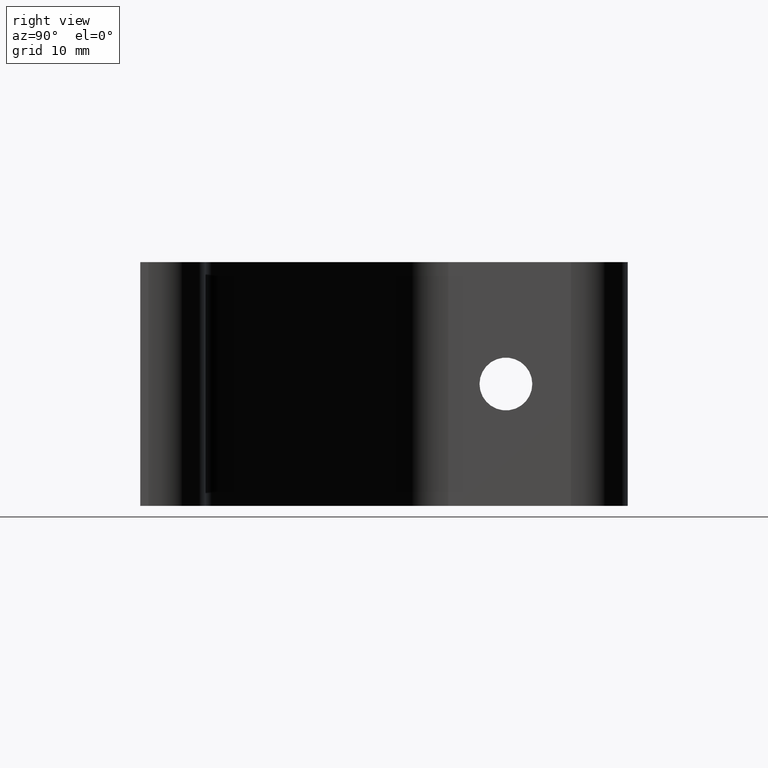
[diagram: clean part render]
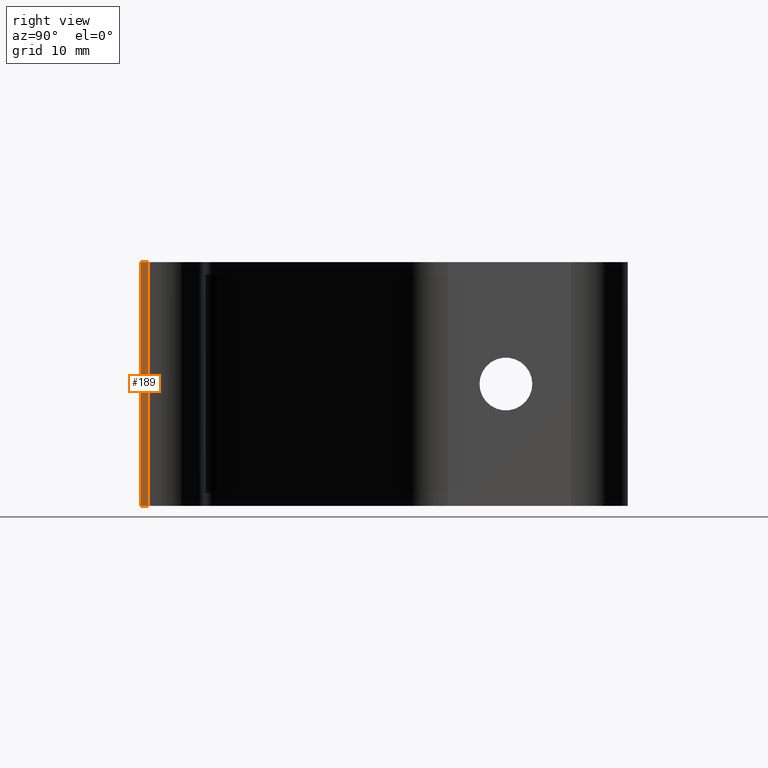
[diagram: same view with one face highlighted and labeled with its STEP entity id]
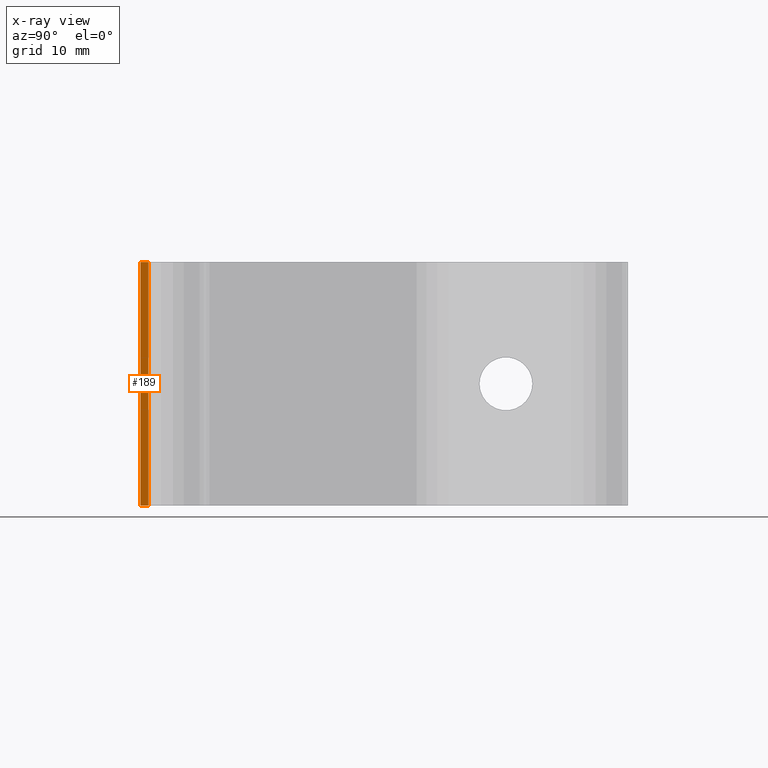
[diagram: x-ray of the same camera — body ghosted, the highlighted face saturated]
A machine part, right view. The second image highlights one B-rep face of the part: STEP entity #189.
The next image is the same camera in x-ray: the body ghosted, the highlighted face saturated — about 0% of this face is hidden behind the body in this view.
In plain terms, the highlighted planar face has unit normal (-1, 0, 0).
Its self-contained STEP definition (entity closure, byte-faithful):
#4 = DIRECTION ( 'NONE',  ( 0.0000000000000000000, 1.000000000000000000, 0.0000000000000000000 ) ) ;
#5 = CARTESIAN_POINT ( 'NONE',  ( 0.0000000000000000000, 30.00000000000000000, 0.0000000000000000000 ) ) ;
#6 = DIRECTION ( 'NONE',  ( -0.0000000000000000000, -0.0000000000000000000, -1.000000000000000000 ) ) ;
#7 = CARTESIAN_POINT ( 'NONE',  ( 0.0000000000000000000, 0.0000000000000000000, 15.00000000000000000 ) ) ;
#8 = DIRECTION ( 'NONE',  ( 0.0000000000000000000, 1.000000000000000000, 0.0000000000000000000 ) ) ;
#15 = ORIENTED_EDGE ( 'NONE', *, *, #383, .T. ) ;
#16 = ORIENTED_EDGE ( 'NONE', *, *, #382, .F. ) ;
#17 = ORIENTED_EDGE ( 'NONE', *, *, #381, .T. ) ;
#161 = CARTESIAN_POINT ( 'NONE',  ( 0.0000000000000000000, 0.9999999985642721300, 1.734723475976807100E-015 ) ) ;
#165 = CARTESIAN_POINT ( 'NONE',  ( 0.0000000000000000000, 0.9999999985642759000, 30.00000000000000000 ) ) ;
#166 = CARTESIAN_POINT ( 'NONE',  ( 0.0000000000000000000, 0.0000000000000000000, 30.00000000000000000 ) ) ;
#169 = CARTESIAN_POINT ( 'NONE',  ( 0.0000000000000000000, 0.0000000000000000000, 0.0000000000000000000 ) ) ;
#189 = ADVANCED_FACE ( 'NONE', ( #621 ), #536, .F. ) ;
#357 = CARTESIAN_POINT ( 'NONE',  ( 0.0000000000000000000, 30.00000000000000000, 30.00000000000000000 ) ) ;
#358 = DIRECTION ( 'NONE',  ( -0.0000000000000000000, -0.0000000000000000000, 1.000000000000000000 ) ) ;
#359 = CARTESIAN_POINT ( 'NONE',  ( 0.0000000000000000000, 0.9999999971285519200, 15.00000000000000000 ) ) ;
#381 = EDGE_CURVE ( 'NONE', #432, #438, #676, .T. ) ;
#382 = EDGE_CURVE ( 'NONE', #439, #438, #675, .T. ) ;
#383 = EDGE_CURVE ( 'NONE', #439, #451, #677, .T. ) ;
#384 = EDGE_CURVE ( 'NONE', #451, #432, #680, .T. ) ;
#432 = VERTEX_POINT ( 'NONE', #161 ) ;
#438 = VERTEX_POINT ( 'NONE', #165 ) ;
#439 = VERTEX_POINT ( 'NONE', #166 ) ;
#451 = VERTEX_POINT ( 'NONE', #169 ) ;
#482 = AXIS2_PLACEMENT_3D ( 'NONE', #535, #534, #533 ) ;
#533 = DIRECTION ( 'NONE',  ( 0.0000000000000000000, -1.000000000000000000, 0.0000000000000000000 ) ) ;
#534 = DIRECTION ( 'NONE',  ( -1.000000000000000000, 0.0000000000000000000, 0.0000000000000000000 ) ) ;
#535 = CARTESIAN_POINT ( 'NONE',  ( 0.0000000000000000000, 1.000000000000000000, 0.0000000000000000000 ) ) ;
#536 = PLANE ( 'NONE',  #482 ) ;
#553 = ORIENTED_EDGE ( 'NONE', *, *, #384, .T. ) ;
#578 = EDGE_LOOP ( 'NONE', ( #17, #16, #15, #553 ) ) ;
#621 = FACE_OUTER_BOUND ( 'NONE', #578, .T. ) ;
#673 = VECTOR ( 'NONE', #358, 1000.000000000000000 ) ;
#675 = LINE ( 'NONE', #357, #679 ) ;
#676 = LINE ( 'NONE', #359, #673 ) ;
#677 = LINE ( 'NONE', #7, #678 ) ;
#678 = VECTOR ( 'NONE', #6, 1000.000000000000000 ) ;
#679 = VECTOR ( 'NONE', #8, 1000.000000000000000 ) ;
#680 = LINE ( 'NONE', #5, #681 ) ;
#681 = VECTOR ( 'NONE', #4, 1000.000000000000000 ) ;